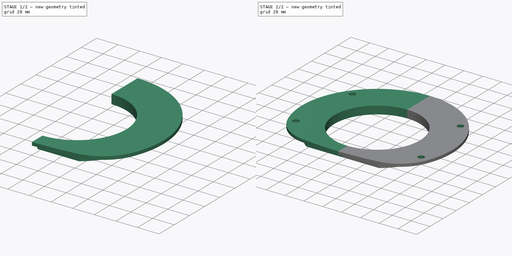
[diagram: build sequence overview — one tinted view per stage of 2, left to right]
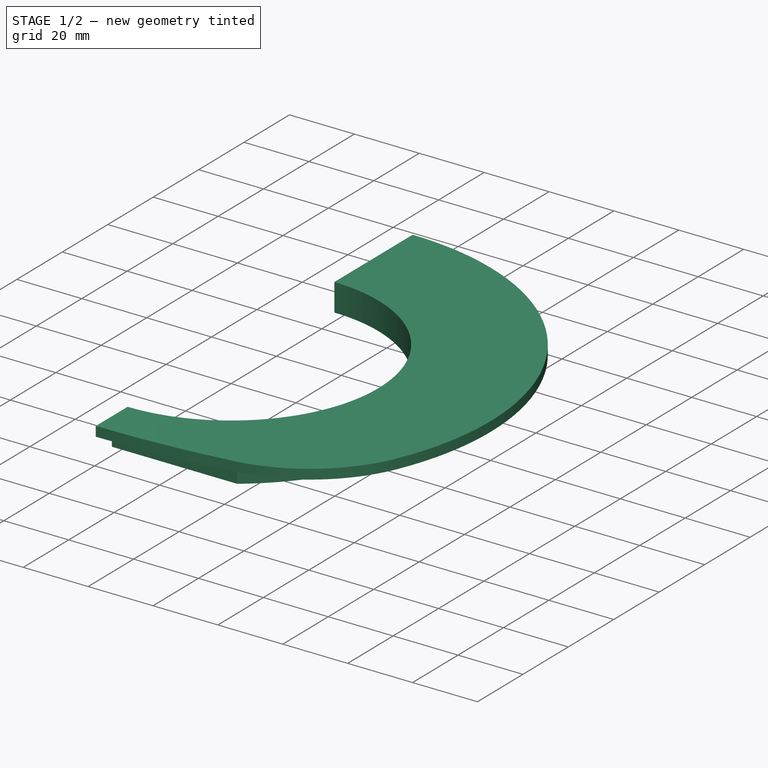
[diagram: stage 1 of 2 — iso view after this stage's code; geometry added in this stage tinted green]
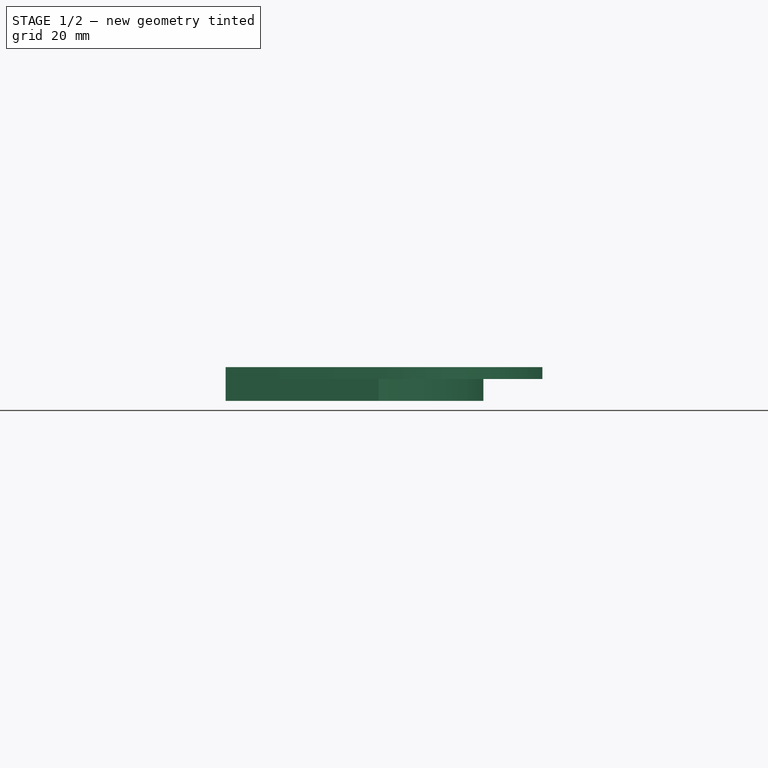
[diagram: stage 1 of 2 — front view after this stage's code; geometry added in this stage tinted green]
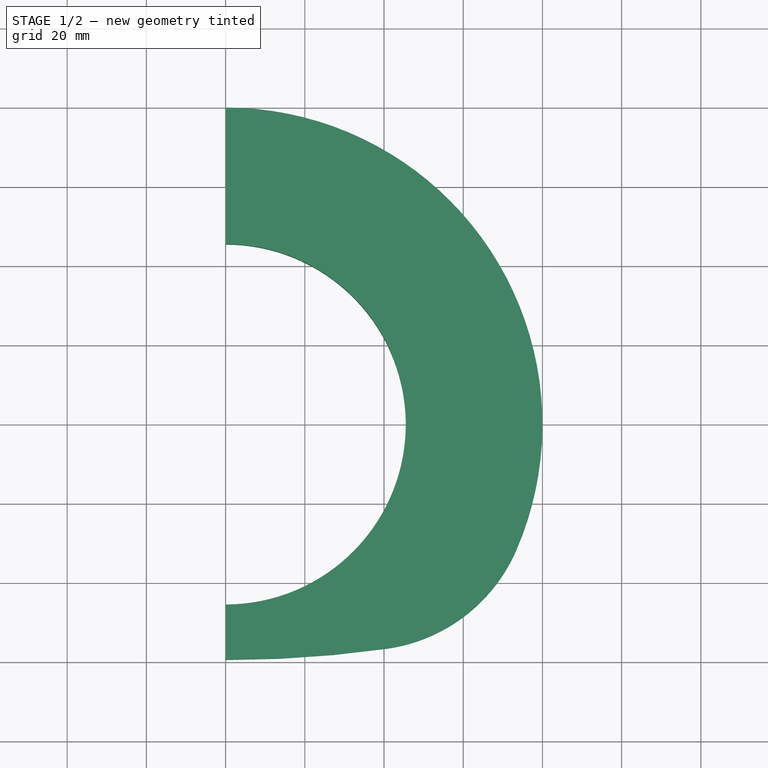
[diagram: stage 1 of 2 — top view after this stage's code; geometry added in this stage tinted green]
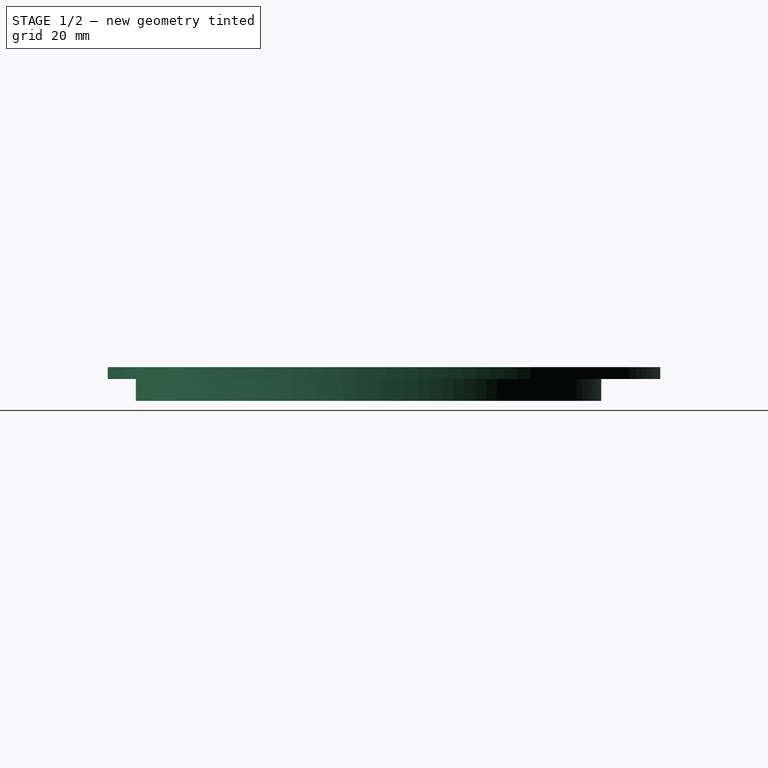
[diagram: stage 1 of 2 — right view after this stage's code; geometry added in this stage tinted green]
FCSTD DOCUMENT  (FreeCAD 0.20R29177 (Git))
Label: Отверстие Револьвера2
License: All rights reserved
LicenseURL: http://en.wikipedia.org/wiki/All_rights_reserved
objects: Sketcher::SketchObject×3, PartDesign::Pad×2, PartDesign::Mirrored×1, PartDesign::Pocket×1, PartDesign::Body×1
note: 11 computed .brp shape members not serialized (recipe doc carries the construction recipe); baked Part::Feature solids carry a one-line shape summary decoded from their .brp

FEATURE [Sketcher::SketchObject] Sketch
  FullyConstrained = true
  MapMode = 5
  Support = -> [XY_Plane]
  sketch-geometry (8):
    g0: ArcOfCircle CenterX=0 CenterY=0 CenterZ=0 NormalX=0 NormalY=0 NormalZ=1 AngleXU=0 Radius=80 StartAngle=5.87558 EndAngle=7.85398
    g1: ArcOfCircle CenterX=0 CenterY=233.5 CenterZ=0 NormalX=0 NormalY=0 NormalZ=1 AngleXU=0 Radius=293 StartAngle=4.71239 EndAngle=4.85183
    g2: LineSegment StartX=-5.38e-14 StartY=-59.5 StartZ=0 EndX=-8.4e-15 EndY=-45.5 EndZ=0
    g3: ArcOfCircle CenterX=0 CenterY=0 CenterZ=0 NormalX=0 NormalY=0 NormalZ=1 AngleXU=0 Radius=45.5 StartAngle=4.71239 EndAngle=7.85398
    g4: LineSegment StartX=1.39e-14 StartY=45.5 StartZ=0 EndX=2.45e-14 EndY=80 EndZ=0
    g5: ArcOfCircle CenterX=34.8867 CenterY=-15.0637 CenterZ=0 NormalX=0 NormalY=0 NormalZ=1 AngleXU=0 Radius=42 StartAngle=4.85183 EndAngle=5.87558
    g6: ArcOfCircle CenterX=0 CenterY=0 CenterZ=0 NormalX=0 NormalY=0 NormalZ=1 AngleXU=0 Radius=65.1 StartAngle=5.34765 EndAngle=7.85398
    g7: LineSegment StartX=38.6297 StartY=-52.4 StartZ=0 EndX=0 EndY=-52.4 EndZ=0
  constraints (27):
    c: Coincident(g0,g-1)
    c: PointOnObject(g0,g-2)
    c: PointOnObject(g1,g-2)
    c: Diameter(g0) = 160
    c: PointOnObject(g1,g-2)
    c: Coincident(g2,g1)
    c: PointOnObject(g2,g-2)
    c: Coincident(g3,g0)
    c: PointOnObject(g3,g-2)
    c: Coincident(g3,g2)
    c: Coincident(g4,g3)
    c: Coincident(g4,g0)
    c: Diameter(g3) = 91
    c: Distance(g2) = 14
    c: Radius(g1) = 293
    c: Coincident(g5,g0)
    c: Coincident(g5,g1)
    c: Tangent(g1,g5)
    c: Tangent(g5,g0)
    c: Diameter(g5) = 84
    c: Coincident(g6,g0)
    c: PointOnObject(g6,g4)
    c: Coincident(g7,g6)
    c: PointOnObject(g7,g-2)
    c: Horizontal(g7)
    c: Diameter(g6) = 130.2
    c: Distance(g7,g-1) = 52.4
FEATURE [PartDesign::Pad] Pad
  Direction = (0,0,1)
  Length = 3
  Length2 = 100
  Profile = -> Sketch
  Type = 0
FEATURE [Sketcher::SketchObject] Sketch001
  FullyConstrained = true
  MapMode = 5
  Support = -> [XY_Plane]
  expr: Constraints[12] = Sketch.Constraints[12]
  expr: Constraints[13] = Sketch.Constraints[13]
  expr: Constraints[14] = Sketch.Constraints[14]
  expr: Constraints[19] = Sketch.Constraints[19]
  expr: Constraints[25] = Sketch.Constraints[25]
  expr: Constraints[26] = Sketch.Constraints[26]
  expr: Constraints[3] = Sketch.Constraints[3]
  sketch-geometry (10):
    g0: ArcOfCircle CenterX=0 CenterY=0 CenterZ=0 NormalX=0 NormalY=0 NormalZ=1 AngleXU=0 Radius=80 StartAngle=5.87558 EndAngle=7.85398
    g1: ArcOfCircle CenterX=0 CenterY=233.5 CenterZ=0 NormalX=0 NormalY=0 NormalZ=1 AngleXU=0 Radius=293 StartAngle=4.71239 EndAngle=4.85183
    g2: LineSegment StartX=0 StartY=-59.5 StartZ=0 EndX=0 EndY=-45.5 EndZ=0
    g3: ArcOfCircle CenterX=0 CenterY=0 CenterZ=0 NormalX=0 NormalY=0 NormalZ=1 AngleXU=0 Radius=45.5 StartAngle=4.71239 EndAngle=7.85398
    g4: LineSegment StartX=1.39e-14 StartY=45.5 StartZ=0 EndX=0 EndY=80 EndZ=0
    g5: ArcOfCircle CenterX=34.8867 CenterY=-15.0637 CenterZ=0 NormalX=0 NormalY=0 NormalZ=1 AngleXU=0 Radius=42 StartAngle=4.85183 EndAngle=5.87558
    g6: ArcOfCircle CenterX=0 CenterY=0 CenterZ=0 NormalX=0 NormalY=0 NormalZ=1 AngleXU=0 Radius=65.1 StartAngle=5.34765 EndAngle=7.85398
    g7: LineSegment StartX=38.6297 StartY=-52.4 StartZ=0 EndX=0 EndY=-52.4 EndZ=0
    g8: LineSegment StartX=0 StartY=65.1 StartZ=0 EndX=1.39e-14 EndY=45.5 EndZ=0
    g9: LineSegment StartX=0 StartY=-52.4 StartZ=0 EndX=0 EndY=-45.5 EndZ=0
  constraints (31):
    c: Coincident(g0,g-1)
    c: PointOnObject(g0,g-2)
    c: PointOnObject(g1,g-2)
    c: Diameter(g0) = 160
    c: PointOnObject(g1,g-2)
    c: Coincident(g2,g1)
    c: PointOnObject(g2,g-2)
    c: Coincident(g3,g0)
    c: PointOnObject(g3,g-2)
    c: Coincident(g3,g2)
    c: Coincident(g4,g3)
    c: Coincident(g4,g0)
    c: Diameter(g3) = 91
    c: Distance(g2) = 14
    c: Radius(g1) = 293
    c: Coincident(g5,g0)
    c: Coincident(g5,g1)
    c: Tangent(g1,g5)
    c: Tangent(g5,g0)
    c: Diameter(g5) = 84
    c: Coincident(g6,g0)
    c: PointOnObject(g6,g4)
    c: Coincident(g7,g6)
    c: PointOnObject(g7,g-2)
    c: Horizontal(g7)
    c: Diameter(g6) = 130.2
    c: Distance(g7,g-1) = 52.4
    c: Coincident(g8,g6)
    c: Coincident(g8,g3)
    c: Coincident(g9,g7)
    c: Coincident(g9,g3)
FEATURE [PartDesign::Pad] Pad001
  BaseFeature = -> Pad
  Direction = (0,0,1)
  Length = 5.5
  Length2 = 100
  Profile = -> Sketch001
  Reversed = true
  Type = 0
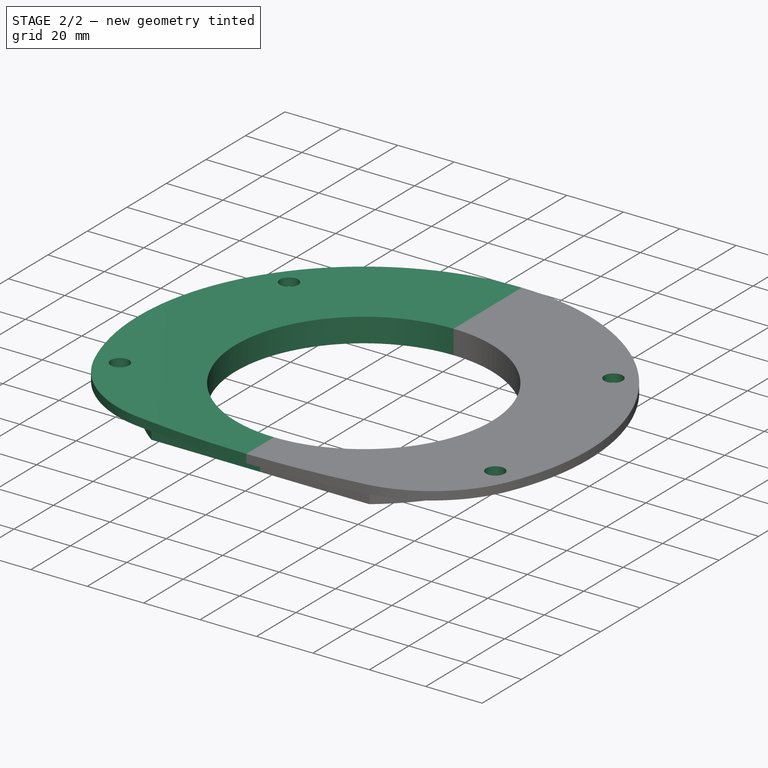
[diagram: stage 2 of 2 — iso view after this stage's code; geometry added in this stage tinted green]
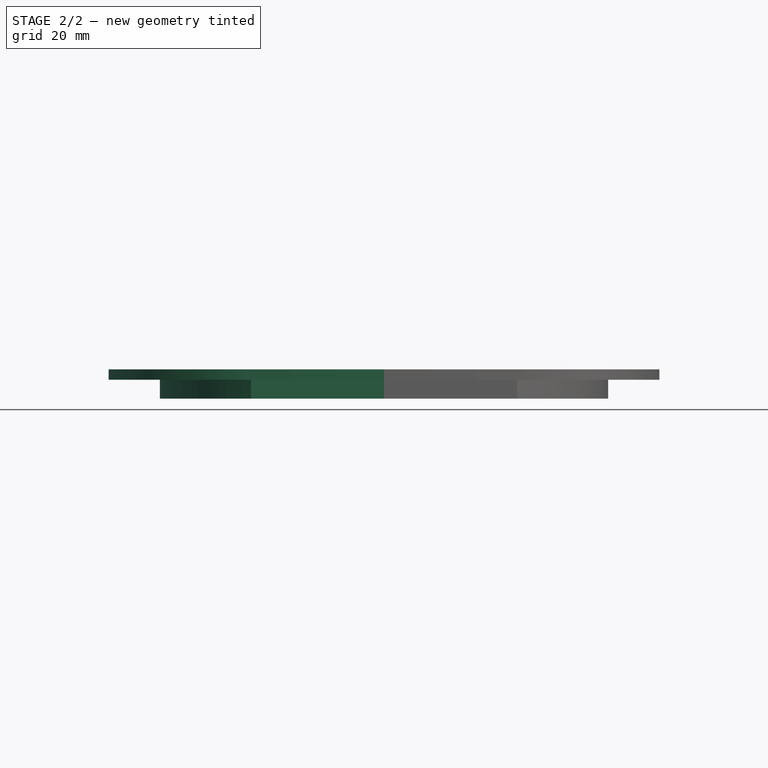
[diagram: stage 2 of 2 — front view after this stage's code; geometry added in this stage tinted green]
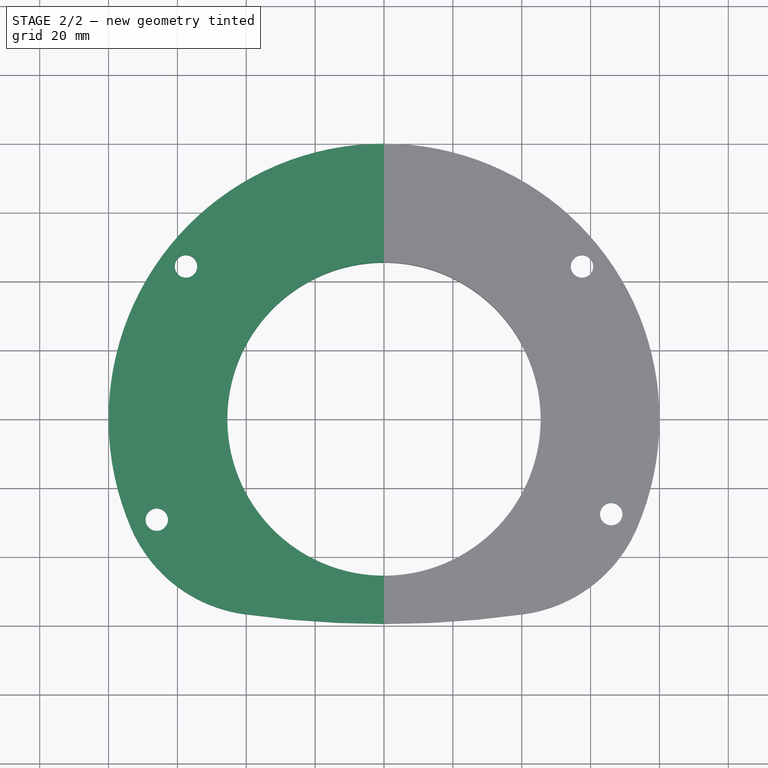
[diagram: stage 2 of 2 — top view after this stage's code; geometry added in this stage tinted green]
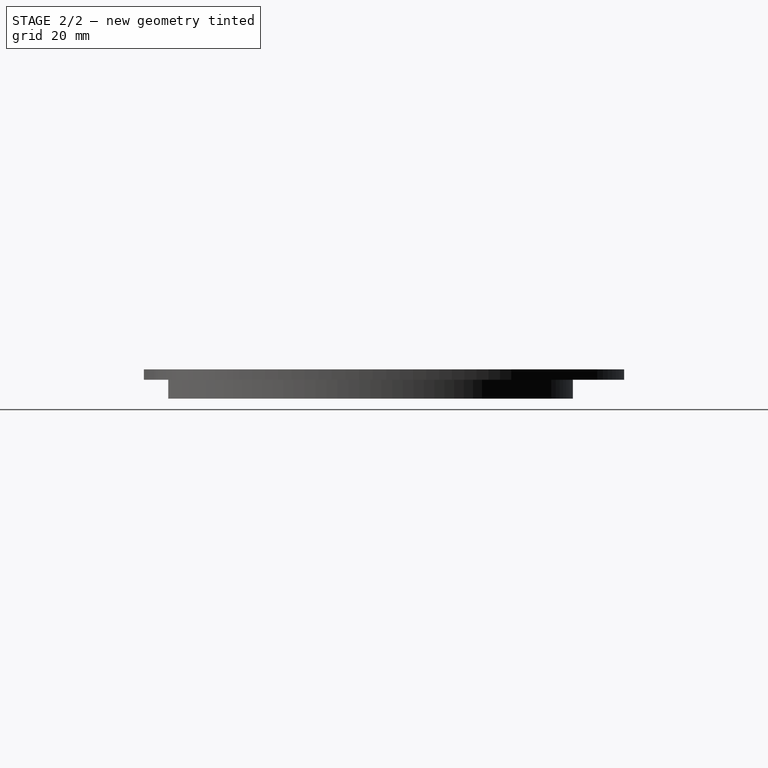
[diagram: stage 2 of 2 — right view after this stage's code; geometry added in this stage tinted green]
FEATURE [PartDesign::Mirrored] Mirrored
  BaseFeature = -> Pad001
  MirrorPlane = -> Sketch [V_Axis]
  Originals = -> [Pad,Pad001]
FEATURE [Sketcher::SketchObject] Sketch002
  FullyConstrained = false
  MapMode = 5
  Support = -> [XY_Plane]
  sketch-geometry (7):
    g0: Circle CenterX=-65.9957 CenterY=-30.2293 CenterZ=0 NormalX=0 NormalY=0 NormalZ=1 AngleXU=0 Radius=3.25
    g1: Circle CenterX=-57.5114 CenterY=44.325 CenterZ=0 NormalX=0 NormalY=0 NormalZ=1 AngleXU=0 Radius=3.25
    g2: Circle CenterX=57.505 CenterY=44.3156 CenterZ=0 NormalX=0 NormalY=0 NormalZ=1 AngleXU=0 Radius=3.25
    g3: Circle CenterX=65.9971 CenterY=-27.6219 CenterZ=0 NormalX=0 NormalY=0 NormalZ=1 AngleXU=0 Radius=3.25
    g4: LineSegment StartX=-57.5114 StartY=44.325 StartZ=0 EndX=0 EndY=44.325 EndZ=0
    g5: LineSegment StartX=57.505 StartY=44.3156 StartZ=0 EndX=0 EndY=44.3156 EndZ=0
    g6: Circle CenterX=-65.9957 CenterY=-29.2293 CenterZ=0 NormalX=0 NormalY=0 NormalZ=1 AngleXU=0 Radius=3.25
  constraints (15):
    c: Diameter(g1) = 6.5
    c: Equal(g0,g3)
    c: Equal(g3,g2)
    c: Equal(g2,g1)
    c: Coincident(g4,g1)
    c: PointOnObject(g4,g-2)
    c: Horizontal(g4)
    c: Coincident(g5,g2)
    c: PointOnObject(g5,g-2)
    c: Horizontal(g5)
    c: DistanceX(g0) = -65.9957
    c: DistanceY(g0) = -30.2293
    c: Equal(g6,g0)
    c: Vertical(g0,g6)
    c: DistanceY(g0,g6) = 1
FEATURE [PartDesign::Pocket] Pocket
  BaseFeature = -> Mirrored
  Direction = (0,0,-1)
  Length = 5
  Length2 = 100
  Profile = -> Sketch002
  Reversed = true
  Type = 1
FEATURE [PartDesign::Body] Body
  Group = -> [Sketch,Pad,Sketch001,Pad001,Mirrored,Sketch002,Pocket]
  Origin = -> Origin
  Tip = -> Pocket
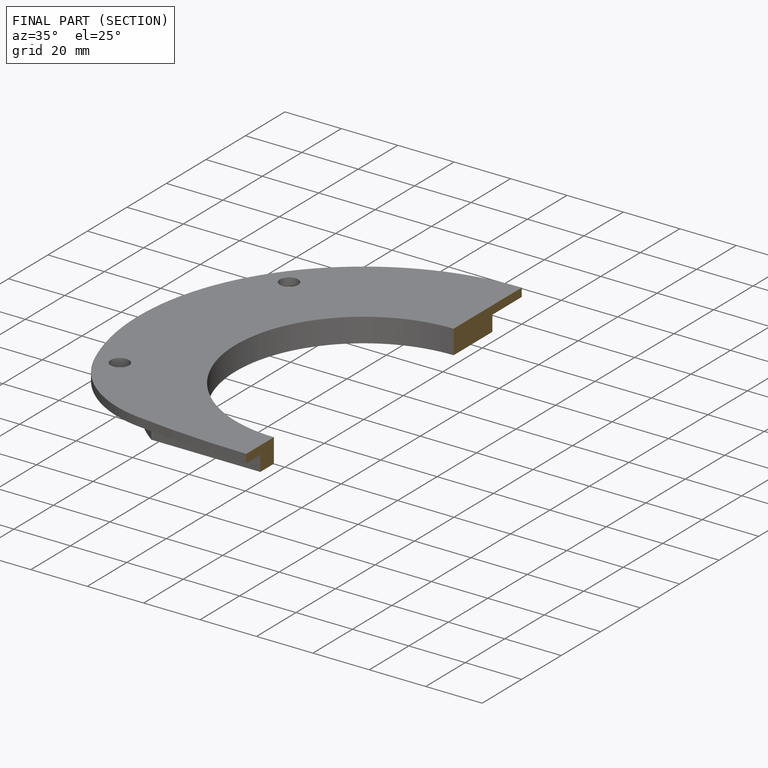
[diagram: finished part — half-section view (interior)]
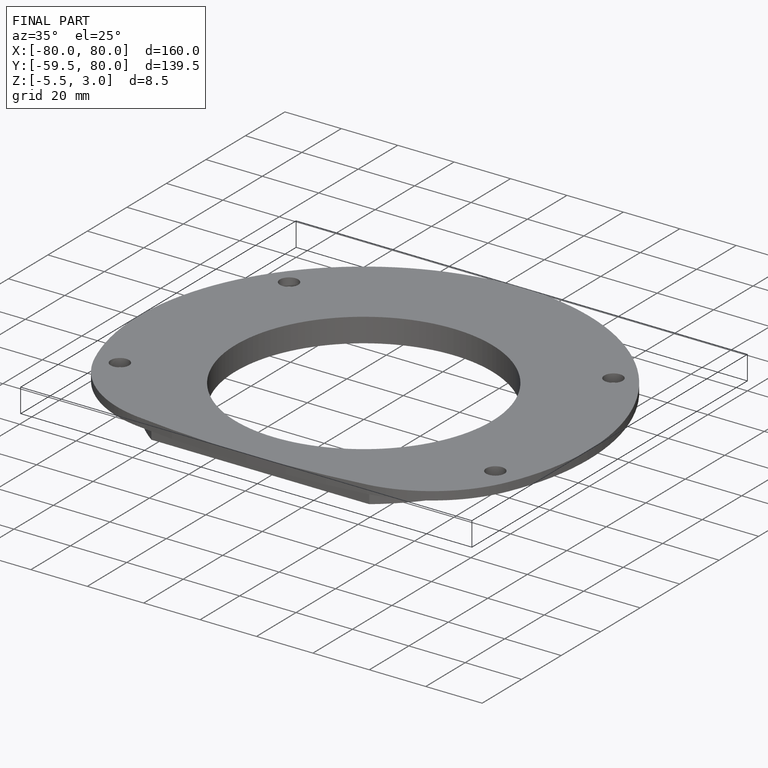
[diagram: finished part — iso view with bounding-box wireframe]
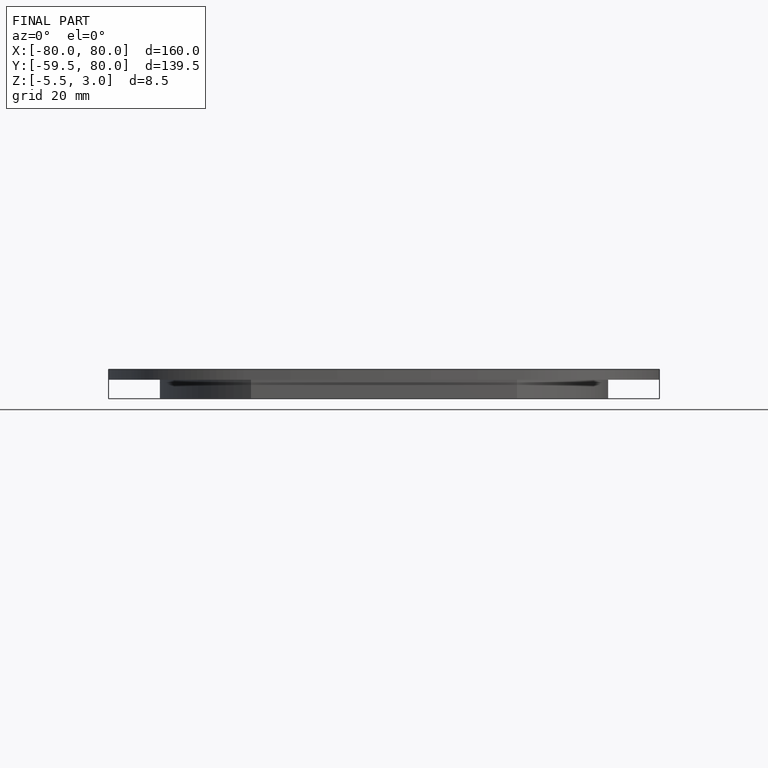
[diagram: finished part — front view with bounding-box wireframe]
